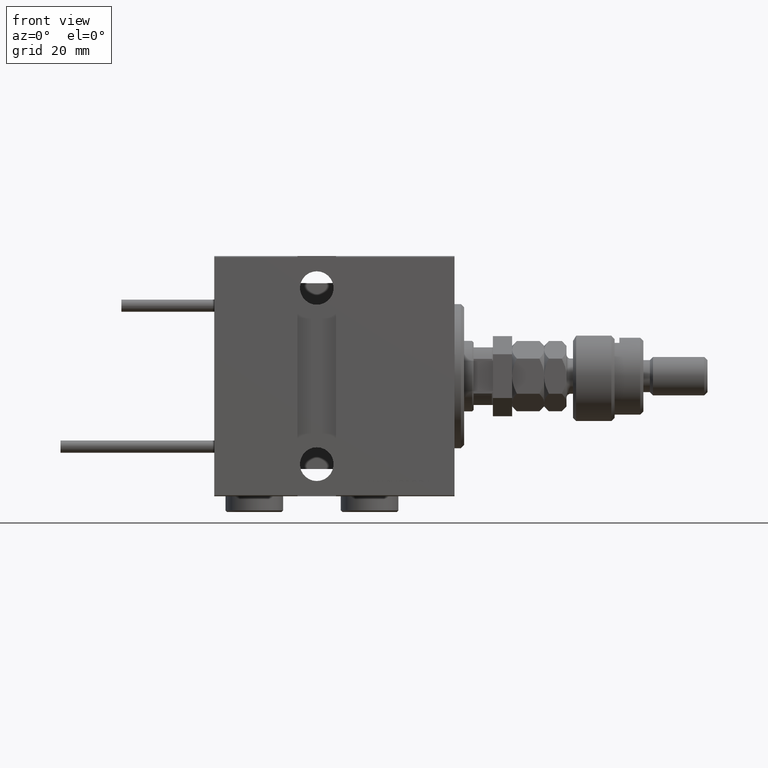
[diagram: clean part render]
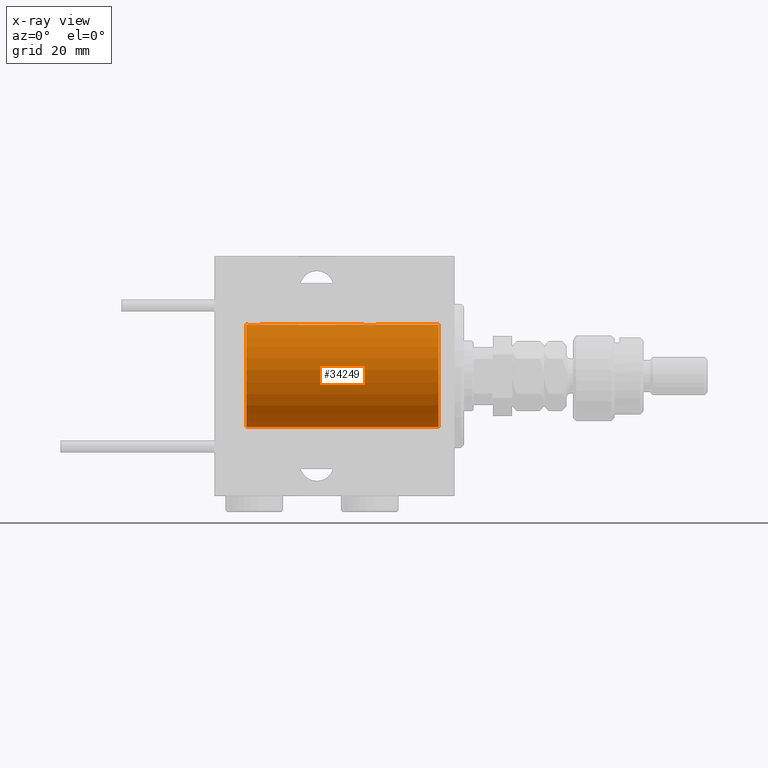
[diagram: x-ray — body ghosted, one internal face saturated and labeled with its STEP entity id]
A machine part, front view, then the same camera in x-ray: the body is ghosted and one INTERNAL B-rep face — a face not visible from any outside direction — is saturated and labeled: STEP entity #34249.
In plain terms, the highlighted cylindrical surface (partial cylindrical patch) has radius 16 mm, axis along (1, 0, -0).
Its self-contained STEP definition (entity closure, byte-faithful):
#452 = CARTESIAN_POINT ( 'NONE',  ( 60.99262839687573745, 1.321075116345875378, 15.94564302722883653 ) ) ;
#599 = CARTESIAN_POINT ( 'NONE',  ( 28.43611326682063378, 0.5181437283162068086, 15.99211983514074298 ) ) ;
#714 = CARTESIAN_POINT ( 'NONE',  ( 60.50000000000000711, -2.739595594696790848E-23, 16.00000000000000000 ) ) ;
#787 = ORIENTED_EDGE ( 'NONE', *, *, #28029, .T. ) ;
#2475 = DIRECTION ( 'NONE',  ( 0.000000000000000000, 0.000000000000000000, 1.000000000000000000 ) ) ;
#2922 = CIRCLE ( 'NONE', #20412, 16.00000000000000000 ) ;
#3715 = CARTESIAN_POINT ( 'NONE',  ( 64.00610712468245822, 1.322357532253809476, 15.94553003295877680 ) ) ;
#3982 = CARTESIAN_POINT ( 'NONE',  ( 62.76191462762252371, 1.999903730784143630, 15.87451999516785506 ) ) ;
#4517 = CARTESIAN_POINT ( 'NONE',  ( 64.23568098498259360, 1.002241074716276881, 15.96895041604535770 ) ) ;
#5211 = CARTESIAN_POINT ( 'NONE',  ( 24.99262839687570903, 1.321075116345881595, 15.94564302722883298 ) ) ;
#5483 = CARTESIAN_POINT ( 'NONE',  ( 24.49999999999999289, 0.1305944228192297274, 15.99999999999999645 ) ) ;
#5898 = VERTEX_POINT ( 'NONE', #37733 ) ;
#6345 = DIRECTION ( 'NONE',  ( -1.000000000000000000, -0.000000000000000000, -0.000000000000000000 ) ) ;
#7598 = CARTESIAN_POINT ( 'NONE',  ( 60.50000000000000711, -2.739595594696790848E-23, 16.00000000000000000 ) ) ;
#8088 = CARTESIAN_POINT ( 'NONE',  ( 60.76517329325045580, 1.003662148334357296, 15.96885838080210362 ) ) ;
#8444 = CARTESIAN_POINT ( 'NONE',  ( 65.00000000000000000, 0.000000000000000000, 16.00000000000000000 ) ) ;
#8464 = ORIENTED_EDGE ( 'NONE', *, *, #16482, .T. ) ;
#8782 = CARTESIAN_POINT ( 'NONE',  ( 26.76191462762254858, 1.999903730784154066, 15.87451999516785861 ) ) ;
#9309 = CARTESIAN_POINT ( 'NONE',  ( 24.60216273501104567, 0.6445079780200539954, 15.98747331501412461 ) ) ;
#9852 = CARTESIAN_POINT ( 'NONE',  ( 4.999999999999997335, 0.000000000000000000, 16.00000000000000000 ) ) ;
#11419 = VERTEX_POINT ( 'NONE', #12020 ) ;
#12020 = CARTESIAN_POINT ( 'NONE',  ( 64.49999999999998579, 3.415560487804343463E-15, 16.00000000000000000 ) ) ;
#12167 = CARTESIAN_POINT ( 'NONE',  ( 63.50659181559576183, 1.747750603376297951, 15.90457341008072056 ) ) ;
#12751 = CARTESIAN_POINT ( 'NONE',  ( 24.50000000000000000, -2.739635037742051899E-23, 16.00000000000000000 ) ) ;
#12973 = CARTESIAN_POINT ( 'NONE',  ( 60.56430947073870641, 0.5198215460038694280, 15.99206840425679310 ) ) ;
#13129 = CARTESIAN_POINT ( 'NONE',  ( 25.17924175171067702, 1.507649250492130388, 15.92908549642226745 ) ) ;
#13247 = CARTESIAN_POINT ( 'NONE',  ( 60.90998471899877131, 1.220169175415108942, 15.95377581882983797 ) ) ;
#13400 = CARTESIAN_POINT ( 'NONE',  ( 27.02531756459403667, 1.947280337074160927, 15.88137861827786779 ) ) ;
#13662 = CARTESIAN_POINT ( 'NONE',  ( 26.37014691649501685, 2.000047931387139322, 15.87450182760079187 ) ) ;
#13933 = CARTESIAN_POINT ( 'NONE',  ( 28.49999999999999645, -1.207828523974853969E-15, 16.00000000000000000 ) ) ;
#14083 = CARTESIAN_POINT ( 'NONE',  ( 65.00000000000000000, 1.959434878635765131E-15, -16.00000000000000000 ) ) ;
#14449 = VECTOR ( 'NONE', #49998, 1000.000000000000000 ) ;
#14588 = VERTEX_POINT ( 'NONE', #12751 ) ;
#15257 = VECTOR ( 'NONE', #6345, 1000.000000000000000 ) ;
#16248 = CARTESIAN_POINT ( 'NONE',  ( 63.02531756459401890, 1.947280337074155376, 15.88137861827787489 ) ) ;
#16482 = EDGE_CURVE ( 'NONE', #11419, #52305, #20354, .T. ) ;
#16522 = CARTESIAN_POINT ( 'NONE',  ( 61.85613031966985886, 1.898058445420874651, 15.88709929148890687 ) ) ;
#16789 = CARTESIAN_POINT ( 'NONE',  ( 60.70250071394959690, 0.8866640484200044581, 15.97587307151817804 ) ) ;
#16944 = CARTESIAN_POINT ( 'NONE',  ( 26.23748416992101085, 1.987008272775788731, 15.87616016863256618 ) ) ;
#17093 = LINE ( 'NONE', #53240, #14449 ) ;
#17471 = CARTESIAN_POINT ( 'NONE',  ( 27.72956111739783580, 1.598790766515148620, 15.92099550861380131 ) ) ;
#18835 = EDGE_CURVE ( 'NONE', #40899, #35933, #2922, .T. ) ;
#18864 = LINE ( 'NONE', #52289, #15257 ) ;
#19242 = CARTESIAN_POINT ( 'NONE',  ( 28.49999999999999645, -1.207828523974853969E-15, 16.00000000000000000 ) ) ;
#19924 = AXIS2_PLACEMENT_3D ( 'NONE', #22904, #22632, #2475 ) ;
#20328 = CARTESIAN_POINT ( 'NONE',  ( 63.72956111739784291, 1.598790766515136408, 15.92099550861381019 ) ) ;
#20354 = B_SPLINE_CURVE_WITH_KNOTS ( 'NONE', 3,
 ( #45881, #49425, #33904, #53471, #24419, #42078, #4517, #41004, #3715, #20328, #12167, #16248, #3982, #33629, #32828, #28760, #16522, #45346, #37732, #37460, #46156, #452, #13247, #8088, #16789, #33103, #12973, #41533, #29833, #714 ),
 .UNSPECIFIED., .F., .F.,
 ( 4, 2, 2, 2, 2, 2, 2, 2, 2, 2, 2, 2, 2, 2, 4 ),
 ( 3.318791181215196379E-18, 0.0003911894522871183053, 0.0007823789045742333579, 0.001173568356861347814, 0.001564757809148462596, 0.002347136713722691292, 0.003129515618296919988, 0.003520705070584034552, 0.003911894522871149117, 0.004303083975158263248, 0.004694273427445377379, 0.005085462879732491510, 0.005476652332019605642, 0.005867841784306719773, 0.006259031236593833904 ),
 .UNSPECIFIED. ) ;
#20412 = AXIS2_PLACEMENT_3D ( 'NONE', #46232, #20662, #37266 ) ;
#20662 = DIRECTION ( 'NONE',  ( -1.000000000000000000, 0.000000000000000000, 0.000000000000000000 ) ) ;
#22632 = DIRECTION ( 'NONE',  ( -1.000000000000000000, -0.000000000000000000, -0.000000000000000000 ) ) ;
#22904 = CARTESIAN_POINT ( 'NONE',  ( 65.00000000000000000, 0.000000000000000000, 0.000000000000000000 ) ) ;
#23163 = FACE_OUTER_BOUND ( 'NONE', #48516, .T. ) ;
#23176 = EDGE_CURVE ( 'NONE', #52305, #51753, #18864, .T. ) ;
#23757 = LINE ( 'NONE', #52803, #37080 ) ;
#24044 = DIRECTION ( 'NONE',  ( -1.000000000000000000, 0.000000000000000000, 0.000000000000000000 ) ) ;
#24338 = EDGE_CURVE ( 'NONE', #35933, #5898, #17093, .T. ) ;
#24419 = CARTESIAN_POINT ( 'NONE',  ( 64.39758870055591444, 0.6452446332038123122, 15.98744362947834574 ) ) ;
#24785 = ORIENTED_EDGE ( 'NONE', *, *, #41723, .T. ) ;
#25370 = CARTESIAN_POINT ( 'NONE',  ( 25.49688752964961225, 1.735145127817741439, 15.90580292899658410 ) ) ;
#26171 = CARTESIAN_POINT ( 'NONE',  ( 25.85613031966986952, 1.898058445420883311, 15.88709929148890510 ) ) ;
#26198 = ORIENTED_EDGE ( 'NONE', *, *, #18835, .F. ) ;
#27051 = EDGE_CURVE ( 'NONE', #51753, #14588, #48749, .T. ) ;
#28029 = EDGE_CURVE ( 'NONE', #14588, #34141, #41094, .T. ) ;
#28760 = CARTESIAN_POINT ( 'NONE',  ( 61.98086902289887945, 1.935876924222067252, 15.88247600692093187 ) ) ;
#28900 = EDGE_CURVE ( 'NONE', #34141, #5898, #46758, .T. ) ;
#28904 = DIRECTION ( 'NONE',  ( -1.000000000000000000, -0.000000000000000000, -0.000000000000000000 ) ) ;
#29450 = CARTESIAN_POINT ( 'NONE',  ( 28.48700524008413382, 0.2623312429553315561, 15.99836091803360105 ) ) ;
#29722 = CARTESIAN_POINT ( 'NONE',  ( 24.90998471899876066, 1.220169175415113827, 15.95377581882983442 ) ) ;
#29833 = CARTESIAN_POINT ( 'NONE',  ( 60.50000000000001421, 0.1305944228192293111, 16.00000000000000000 ) ) ;
#29987 = CARTESIAN_POINT ( 'NONE',  ( 25.61382242942729803, 1.797743958659254515, 15.89876304682112007 ) ) ;
#30246 = CARTESIAN_POINT ( 'NONE',  ( 28.09051504852099512, 1.219564485341767091, 15.95382484008323409 ) ) ;
#31933 = DIRECTION ( 'NONE',  ( 0.000000000000000000, 0.000000000000000000, 1.000000000000000000 ) ) ;
#32828 = CARTESIAN_POINT ( 'NONE',  ( 62.23748416992101085, 1.987008272775779627, 15.87616016863256618 ) ) ;
#33103 = CARTESIAN_POINT ( 'NONE',  ( 60.60216273501104212, 0.6445079780200505537, 15.98747331501412461 ) ) ;
#33171 = ORIENTED_EDGE ( 'NONE', *, *, #24338, .F. ) ;
#33629 = CARTESIAN_POINT ( 'NONE',  ( 62.37014691649500264, 2.000047931387129552, 15.87450182760079898 ) ) ;
#33782 = CARTESIAN_POINT ( 'NONE',  ( 28.29713414748220046, 0.8874076679346754037, 15.97583181162460697 ) ) ;
#33904 = CARTESIAN_POINT ( 'NONE',  ( 64.48700524008410184, 0.2623312429553320002, 15.99836091803360105 ) ) ;
#34141 = VERTEX_POINT ( 'NONE', #9852 ) ;
#34249 = ADVANCED_FACE ( 'NONE', ( #23163 ), #39760, .F. ) ;
#34333 = ORIENTED_EDGE ( 'NONE', *, *, #28900, .T. ) ;
#34581 = CARTESIAN_POINT ( 'NONE',  ( 25.28032342557723311, 1.590393755196000347, 15.92092783521424337 ) ) ;
#35146 = ORIENTED_EDGE ( 'NONE', *, *, #23176, .T. ) ;
#35933 = VERTEX_POINT ( 'NONE', #14083 ) ;
#37080 = VECTOR ( 'NONE', #28904, 1000.000000000000000 ) ;
#37163 = AXIS2_PLACEMENT_3D ( 'NONE', #48786, #24044, #31933 ) ;
#37266 = DIRECTION ( 'NONE',  ( 0.000000000000000000, 0.000000000000000000, 1.000000000000000000 ) ) ;
#37460 = CARTESIAN_POINT ( 'NONE',  ( 61.28032342557722245, 1.590393755195991909, 15.92092783521423272 ) ) ;
#37733 = CARTESIAN_POINT ( 'NONE',  ( 4.999999999999997335, 1.959434878635765131E-15, -16.00000000000000000 ) ) ;
#37732 = CARTESIAN_POINT ( 'NONE',  ( 61.49688752964961935, 1.735145127817733002, 15.90580292899658410 ) ) ;
#38602 = CARTESIAN_POINT ( 'NONE',  ( 65.00000000000000000, 0.000000000000000000, 16.00000000000000000 ) ) ;
#38688 = CARTESIAN_POINT ( 'NONE',  ( 28.23568098498261492, 1.002241074716280655, 15.96895041604536480 ) ) ;
#39760 = CYLINDRICAL_SURFACE ( 'NONE', #19924, 16.00000000000000000 ) ;
#40631 = VECTOR ( 'NONE', #53557, 1000.000000000000000 ) ;
#40899 = VERTEX_POINT ( 'NONE', #38602 ) ;
#41004 = CARTESIAN_POINT ( 'NONE',  ( 64.09051504852095604, 1.219564485341761317, 15.95382484008322344 ) ) ;
#41094 = LINE ( 'NONE', #8444, #40631 ) ;
#41533 = CARTESIAN_POINT ( 'NONE',  ( 60.51309075167873885, 0.2632563459770802528, 15.99834873924246104 ) ) ;
#41723 = EDGE_CURVE ( 'NONE', #40899, #11419, #23757, .T. ) ;
#42078 = CARTESIAN_POINT ( 'NONE',  ( 64.29713414748218270, 0.8874076679346717400, 15.97583181162460697 ) ) ;
#42490 = CARTESIAN_POINT ( 'NONE',  ( 28.00610712468246177, 1.322357532253821910, 15.94553003295878391 ) ) ;
#42760 = CARTESIAN_POINT ( 'NONE',  ( 24.51309075167874596, 0.2632563459770819736, 15.99834873924246459 ) ) ;
#44964 = ORIENTED_EDGE ( 'NONE', *, *, #27051, .T. ) ;
#45346 = CARTESIAN_POINT ( 'NONE',  ( 61.61382242942730159, 1.797743958659246966, 15.89876304682111652 ) ) ;
#45766 = CARTESIAN_POINT ( 'NONE',  ( 24.50000000000000000, -2.739635037742051899E-23, 16.00000000000000000 ) ) ;
#45881 = CARTESIAN_POINT ( 'NONE',  ( 64.49999999999998579, 3.415560487804343463E-15, 16.00000000000000000 ) ) ;
#46038 = CARTESIAN_POINT ( 'NONE',  ( 28.39758870055591444, 0.6452446332038146437, 15.98744362947834574 ) ) ;
#46156 = CARTESIAN_POINT ( 'NONE',  ( 61.17924175171067702, 1.507649250492122839, 15.92908549642226745 ) ) ;
#46232 = CARTESIAN_POINT ( 'NONE',  ( 65.00000000000000000, 0.000000000000000000, 0.000000000000000000 ) ) ;
#46307 = CARTESIAN_POINT ( 'NONE',  ( 24.76517329325045225, 1.003662148334361959, 15.96885838080210007 ) ) ;
#46571 = CARTESIAN_POINT ( 'NONE',  ( 24.70250071394960045, 0.8866640484200088990, 15.97587307151817448 ) ) ;
#46758 = CIRCLE ( 'NONE', #37163, 16.00000000000000000 ) ;
#46834 = CARTESIAN_POINT ( 'NONE',  ( 24.56430947073869930, 0.5198215460038717595, 15.99206840425678955 ) ) ;
#48516 = EDGE_LOOP ( 'NONE', ( #33171, #26198, #24785, #8464, #35146, #44964, #787, #34333 ) ) ;
#48749 = B_SPLINE_CURVE_WITH_KNOTS ( 'NONE', 3,
 ( #13933, #50635, #29450, #599, #46038, #33782, #38688, #30246, #42490, #17471, #50898, #13400, #8782, #13662, #16944, #50373, #26171, #29987, #25370, #34581, #13129, #5211, #29722, #46307, #46571, #9309, #46834, #42760, #5483, #45766 ),
 .UNSPECIFIED., .F., .F.,
 ( 4, 2, 2, 2, 2, 2, 2, 2, 2, 2, 2, 2, 2, 2, 4 ),
 ( 1.745049934674283425E-18, 0.0003911894522871204737, 0.0007823789045742392126, 0.001173568356861357789, 0.001564757809148476691, 0.002347136713722706037, 0.003129515618296936034, 0.003520705070584051466, 0.003911894522871166464, 0.004303083975158282330, 0.004694273427445396461, 0.005085462879732512327, 0.005476652332019627326, 0.005867841784306743191, 0.006259031236593858190 ),
 .UNSPECIFIED. ) ;
#48786 = CARTESIAN_POINT ( 'NONE',  ( 4.999999999999997335, 0.000000000000000000, 0.000000000000000000 ) ) ;
#49425 = CARTESIAN_POINT ( 'NONE',  ( 64.49999999999997158, 0.1322838750249256956, 16.00000000000000000 ) ) ;
#49998 = DIRECTION ( 'NONE',  ( -1.000000000000000000, -0.000000000000000000, -0.000000000000000000 ) ) ;
#50373 = CARTESIAN_POINT ( 'NONE',  ( 25.98086902289887234, 1.935876924222074358, 15.88247600692093187 ) ) ;
#50635 = CARTESIAN_POINT ( 'NONE',  ( 28.49999999999998579, 0.1322838750249257511, 16.00000000000000000 ) ) ;
#50898 = CARTESIAN_POINT ( 'NONE',  ( 27.50659181559580446, 1.747750603376297729, 15.90457341008072056 ) ) ;
#51753 = VERTEX_POINT ( 'NONE', #19242 ) ;
#52289 = CARTESIAN_POINT ( 'NONE',  ( 65.00000000000000000, 0.000000000000000000, 16.00000000000000000 ) ) ;
#52305 = VERTEX_POINT ( 'NONE', #7598 ) ;
#52803 = CARTESIAN_POINT ( 'NONE',  ( 65.00000000000000000, 0.000000000000000000, 16.00000000000000000 ) ) ;
#53240 = CARTESIAN_POINT ( 'NONE',  ( 65.00000000000000000, 1.959434878635765131E-15, -16.00000000000000000 ) ) ;
#53471 = CARTESIAN_POINT ( 'NONE',  ( 64.43611326682059826, 0.5181437283162059204, 15.99211983514074653 ) ) ;
#53557 = DIRECTION ( 'NONE',  ( -1.000000000000000000, -0.000000000000000000, -0.000000000000000000 ) ) ;